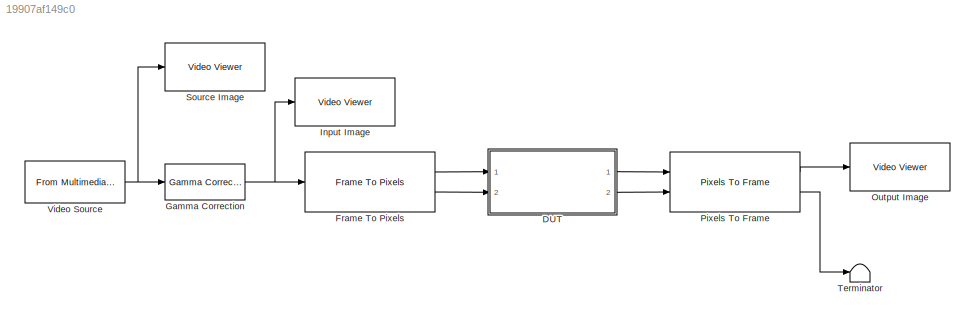
MODEL slx_19907af149c0
KIND model
CONFIG AbsTol = auto
CONFIG FixedStep = auto
CONFIG MaxStep = auto
CONFIG MinStep = auto
CONFIG RelTol = 1e-3
CONFIG SampleTimeConstraint = Unconstrained
CONFIG Solver = FixedStepDiscrete
CONFIG SolverMode = SingleTasking
CONFIG SolverName = FixedStepDiscrete
CONFIG StartTime = 0.0
CONFIG StopTime = 320*240*100
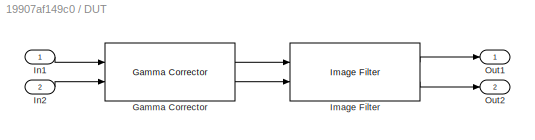
BLOCK [SubSystem] DUT
  Ports = [2, 2]
  RequestExecContextInheritance = off
BLOCK [Reference] DUT/Gamma Corrector  REF=visionhdlconversions/Gamma Corrector
  BreakPoint = 0.018
  Correction = Gamma
  Gamma = 2.2
  LinearSegment = on
  Ports = [2, 2]
  SimulateUsing = Code generation
  SourceBlock = visionhdlconversions/Gamma Corrector
  SourceType = visionhdl.GammaCorrector
BLOCK [Reference] DUT/Image Filter  REF=visionhdlfilter/Image Filter
  CoeffDataTypeStr = fixdt(1,8,4)
  CoeffMax = []
  CoeffMin = []
  Coefficients = H
  LineBufferSize = 2048
  LockScale = off
  OutputDataTypeStr = Inherit: Same as first input
  OutputMax = []
  OutputMin = []
  PaddingMethod = Replicate
  PaddingValue = 0
  Ports = [2, 2]
  SimulateUsing = Code generation
  SourceBlock = visionhdlfilter/Image Filter
  SourceType = visionhdl.ImageFilter
  overflowMode = on
  roundingMode = Floor
BLOCK [Inport] DUT/In1
  IconDisplay = Port number
BLOCK [Inport] DUT/In2
  IconDisplay = Port number
  Port = 2
BLOCK [Outport] DUT/Out1
  IconDisplay = Port number
BLOCK [Outport] DUT/Out2
  IconDisplay = Port number
  Port = 2
BLOCK [Reference] Frame To Pixels  REF=visionhdlio/Frame To Pixels
  ActivePixelsPerLine = 32
  ActiveVideoLines = 18
  FrontPorch = 5
  NumComponents = 1
  Ports = [1, 2]
  SampleTime = 0
  SourceBlock = visionhdlio/Frame To Pixels
  SourceType = Frame To Pixels
  StartingActiveLine = 6
  TotalPixelsPerLine = 42
  TotalVideoLines = 28
  VideoFormat = 240p
BLOCK [Reference] Gamma Correction  REF=visionconversions/Gamma Correction
  Ports = [1, 1]
  SourceBlock = visionconversions/Gamma Correction
  SourceType = Gamma Correction
  breakPoint = 0.018
  gamma = 2.2
  linearSegment = on
  operation = De-gamma
BLOCK [Reference] Input Image  REF=visionsinks/Video Viewer
  AxisZoom = on
  DefaultConfigurationName = vipscopes.VideoViewerScopeCfg
  FigPos = [366 381 334 275]
  OpenAtMdlStart = on
  Ports = [1]
  SourceBlock = visionsinks/Video Viewer
  SourceType = Video Viewer
  UserDataPersistent = on
  colormapValue = gray(256)
  imagePorts = One multidimensional signal
  inputType = Obsolete7b
  maxInputVal = 255
  minInputVal = 0
  specRange = off
  trueSizedOnce = off
  useColorMap = off
BLOCK [Reference] Output Image  REF=visionsinks/Video Viewer
  AxisZoom = on
  DefaultConfigurationName = vipscopes.VideoViewerScopeCfg
  FigPos = [709 384 334 275]
  OpenAtMdlStart = on
  Ports = [1]
  SourceBlock = visionsinks/Video Viewer
  SourceType = Video Viewer
  UserDataPersistent = on
  colormapValue = gray(256)
  imagePorts = One multidimensional signal
  inputType = Obsolete7b
  maxInputVal = 255
  minInputVal = 0
  specRange = off
  trueSizedOnce = off
  useColorMap = off
BLOCK [Reference] Pixels To Frame  REF=visionhdlio/Pixels To Frame
  ActivePixelsPerLine = 32
  ActiveVideoLines = 18
  NumComponents = 1
  Ports = [2, 2]
  SourceBlock = visionhdlio/Pixels To Frame
  SourceType = Pixels To Frame
  TotalPixelsPerLine = 42
  TotalVideoLines = 28
  VideoFormat = 240p
BLOCK [Reference] Source Image  REF=visionsinks/Video Viewer
  AxisZoom = on
  DefaultConfigurationName = vipscopes.VideoViewerScopeCfg
  FigPos = [21 379 334 275]
  OpenAtMdlStart = on
  Ports = [1]
  SourceBlock = visionsinks/Video Viewer
  SourceType = Video Viewer
  UserDataPersistent = on
  colormapValue = gray(256)
  imagePorts = One multidimensional signal
  inputType = Obsolete7b
  maxInputVal = 255
  minInputVal = 0
  specRange = off
  trueSizedOnce = off
  useColorMap = off
BLOCK [Terminator] Terminator
BLOCK [Reference] Video Source  REF=dspvision/From Multimedia File
  Ports = [0, 1]
  SourceBlock = dspvision/From Multimedia File
  SourceType = From Multimedia File
  audioDataType = int16
  audioFrameSize = 1024
  colorVideoFormat = One multidimensional signal
  computeAudioFrameSize = off
  dataOrg = Column-major
  fourcc = Intensity
  inheritSampleTime = off
  inputFilename = rhinos.avi
  isIntensityVideo = off
  loop = on
  noAudioOutput = off
  numPlays = inf
  outSamplingMode = Sample based
  outputEOF = off
  outputStreams = Video only
  userDefinedSampleTime = 402*324
  videoDataType = uint8
LINE DUT/Gamma Corrector:1 -> DUT/Image Filter:1
LINE DUT/Gamma Corrector:2 -> DUT/Image Filter:2
LINE DUT/Image Filter:1 -> DUT/Out1:1
LINE DUT/Image Filter:2 -> DUT/Out2:1
LINE DUT/In1:1 -> DUT/Gamma Corrector:1
LINE DUT/In2:1 -> DUT/Gamma Corrector:2
LINE DUT:1 -> Pixels To Frame:1
LINE DUT:2 -> Pixels To Frame:2
LINE Frame To Pixels:1 -> DUT:1
LINE Frame To Pixels:2 -> DUT:2
NET Gamma Correction:1 -> Frame To Pixels:1, Input Image:1
LINE Pixels To Frame:1 -> Output Image:1
LINE Pixels To Frame:2 -> Terminator:1
NET Video Source:1 -> Gamma Correction:1, Source Image:1
note: NET lines group one-source signal fan-out (src -> all destinations, sorted); 1:1 wires keep LINE
